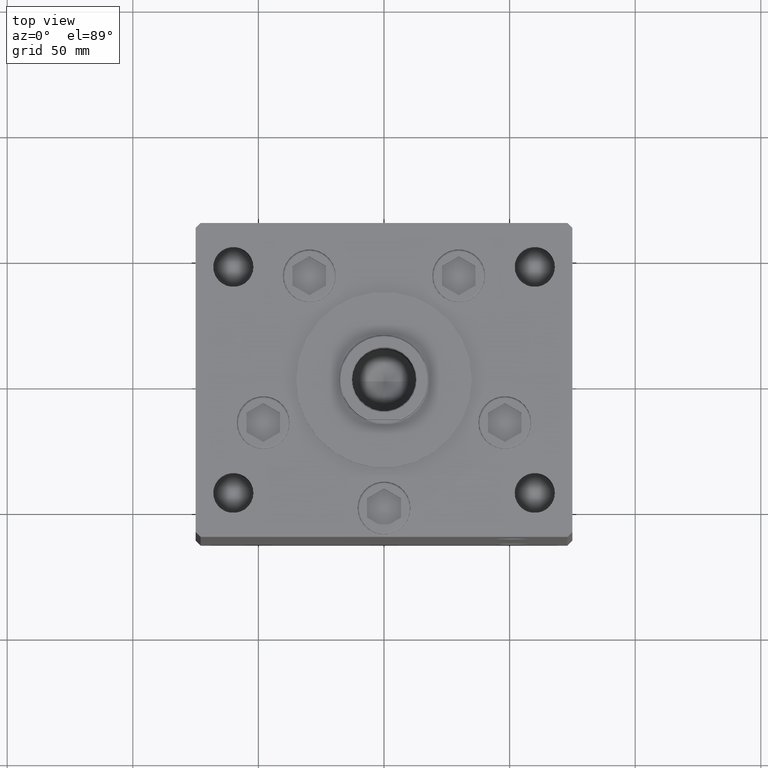
[diagram: clean part render]
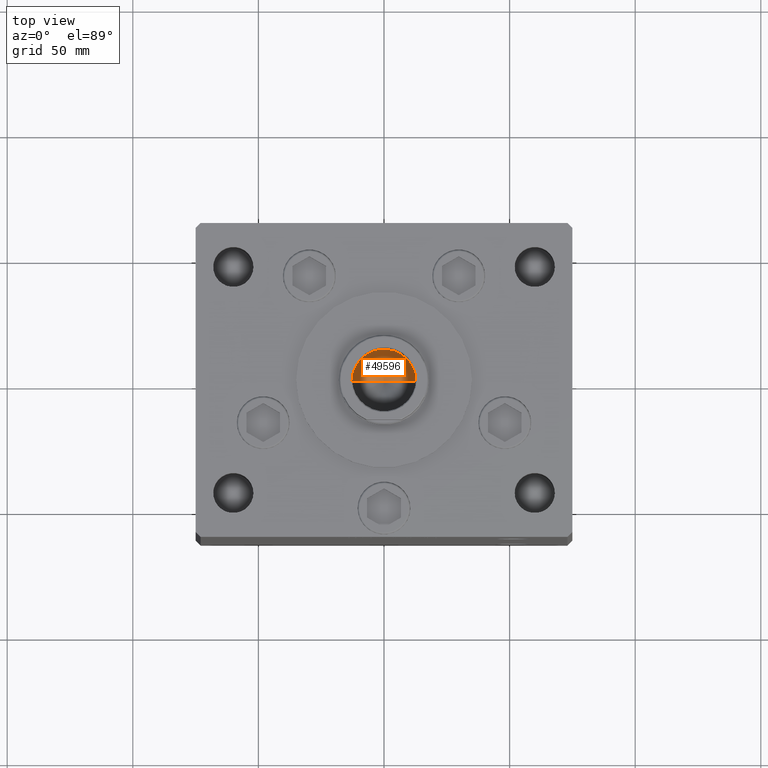
[diagram: same view with one face highlighted and labeled with its STEP entity id]
A machine part, top view. The second image highlights one B-rep face of the part: STEP entity #49596.
In plain terms, the highlighted conical surface has half-angle 59 deg.
Its self-contained STEP definition (entity closure, byte-faithful):
#822 = EDGE_LOOP ( 'NONE', ( #30309, #39123, #32204 ) ) ;
#5312 = CARTESIAN_POINT ( 'NONE',  ( -1.307202896762960287E-14, 0.000000000000000000, 129.8390271073986355 ) ) ;
#7075 = CARTESIAN_POINT ( 'NONE',  ( 12.74999999999999112, 0.000000000000000000, 137.5000000000000000 ) ) ;
#9271 = VERTEX_POINT ( 'NONE', #7075 ) ;
#10168 = CIRCLE ( 'NONE', #31196, 12.74999999999999112 ) ;
#13955 = EDGE_CURVE ( 'NONE', #9271, #29978, #10168, .T. ) ;
#15940 = DIRECTION ( 'NONE',  ( 1.000000000000000000, 0.000000000000000000, 0.000000000000000000 ) ) ;
#16383 = AXIS2_PLACEMENT_3D ( 'NONE', #39679, #35453, #15940 ) ;
#19107 = FACE_OUTER_BOUND ( 'NONE', #822, .T. ) ;
#19895 = DIRECTION ( 'NONE',  ( -0.8571673007021125557, 1.049727191138618942E-16, 0.5150380749100536004 ) ) ;
#24790 = VERTEX_POINT ( 'NONE', #5312 ) ;
#26133 = CARTESIAN_POINT ( 'NONE',  ( -12.74999999999999112, 1.561424668912874125E-15, 137.5000000000000000 ) ) ;
#27676 = VECTOR ( 'NONE', #50401, 1000.000000000000114 ) ;
#27802 = LINE ( 'NONE', #35217, #52138 ) ;
#28556 = EDGE_CURVE ( 'NONE', #24790, #29978, #27802, .T. ) ;
#28617 = EDGE_CURVE ( 'NONE', #24790, #9271, #45686, .T. ) ;
#29651 = CARTESIAN_POINT ( 'NONE',  ( 0.000000000000000000, 0.000000000000000000, 137.5000000000000000 ) ) ;
#29978 = VERTEX_POINT ( 'NONE', #26133 ) ;
#30309 = ORIENTED_EDGE ( 'NONE', *, *, #28556, .F. ) ;
#31196 = AXIS2_PLACEMENT_3D ( 'NONE', #29651, #42330, #46022 ) ;
#32204 = ORIENTED_EDGE ( 'NONE', *, *, #13955, .T. ) ;
#35217 = CARTESIAN_POINT ( 'NONE',  ( -12.74999999999999112, 1.561424668912874125E-15, 137.5000000000000000 ) ) ;
#35453 = DIRECTION ( 'NONE',  ( -0.000000000000000000, -0.000000000000000000, 1.000000000000000000 ) ) ;
#35746 = CONICAL_SURFACE ( 'NONE', #16383, 12.74999999999999112, 1.029744258676655200 ) ;
#38284 = CARTESIAN_POINT ( 'NONE',  ( 12.74999999999999112, 0.000000000000000000, 137.5000000000000000 ) ) ;
#39123 = ORIENTED_EDGE ( 'NONE', *, *, #28617, .T. ) ;
#39679 = CARTESIAN_POINT ( 'NONE',  ( 0.000000000000000000, 0.000000000000000000, 137.5000000000000000 ) ) ;
#42330 = DIRECTION ( 'NONE',  ( -0.000000000000000000, -0.000000000000000000, 1.000000000000000000 ) ) ;
#45686 = LINE ( 'NONE', #38284, #27676 ) ;
#46022 = DIRECTION ( 'NONE',  ( 1.000000000000000000, 0.000000000000000000, 0.000000000000000000 ) ) ;
#49596 = ADVANCED_FACE ( 'NONE', ( #19107 ), #35746, .F. ) ;
#50401 = DIRECTION ( 'NONE',  ( 0.8571673007021125557, 0.000000000000000000, 0.5150380749100536004 ) ) ;
#52138 = VECTOR ( 'NONE', #19895, 1000.000000000000114 ) ;